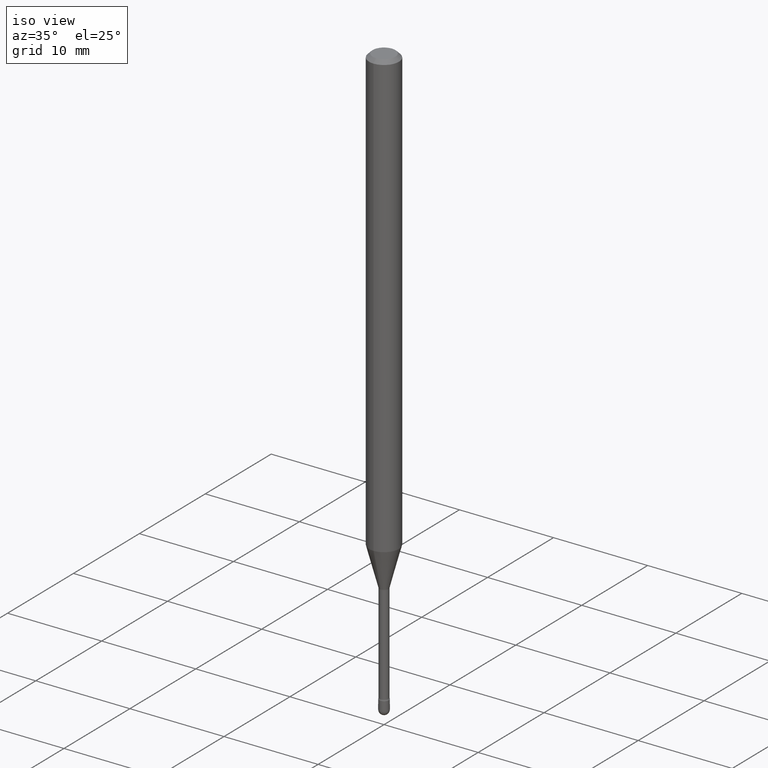
[diagram: clean part render]
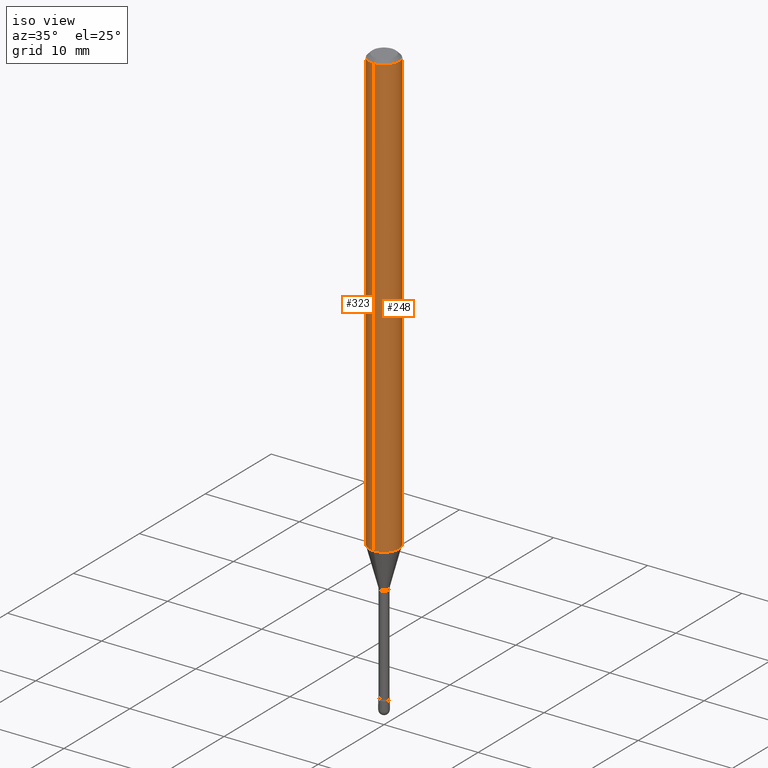
[diagram: same view with one multi-face feature highlighted, each face labeled with its STEP entity id]
A machine part, iso view. The highlighted faces form ONE feature: a constant-radius fillet chain: 2 tangent blend faces with common blend radius 1.5875 mm. The faces share edges in the B-rep.
Their STEP definitions:
[1] entity #323 (Cylinder):
#7 = DIRECTION ( 'NONE',  ( -2.445419758855719458E-29, 3.491551577410471603E-15, 1.000000000000000000 ) ) ;
#8 = EDGE_CURVE ( 'NONE', #239, #116, #395, .T. ) ;
#17 = VECTOR ( 'NONE', #173, 39.37007874015748143 ) ;
#36 = VERTEX_POINT ( 'NONE', #347 ) ;
#43 = FACE_OUTER_BOUND ( 'NONE', #287, .T. ) ;
#85 = CYLINDRICAL_SURFACE ( 'NONE', #253, 0.06250000000000000000 ) ;
#91 = ORIENTED_EDGE ( 'NONE', *, *, #8, .F. ) ;
#101 = CARTESIAN_POINT ( 'NONE',  ( 4.440892098501077785E-16, 0.06249999999999350520, -1.856909379709240637 ) ) ;
#116 = VERTEX_POINT ( 'NONE', #120 ) ;
#119 = DIRECTION ( 'NONE',  ( -6.982962677686265922E-15, -1.000000000000000000, 3.491551577410471208E-15 ) ) ;
#120 = CARTESIAN_POINT ( 'NONE',  ( 4.440892098501082715E-16, 0.06249999999999995143, -0.01500000000000030129 ) ) ;
#149 = DIRECTION ( 'NONE',  ( -2.445419758855719458E-29, 3.491551577410471603E-15, 1.000000000000000000 ) ) ;
#166 = EDGE_CURVE ( 'NONE', #116, #36, #374, .T. ) ;
#173 = DIRECTION ( 'NONE',  ( -2.445419758855719458E-29, 3.491551577410471603E-15, 1.000000000000000000 ) ) ;
#180 = EDGE_CURVE ( 'NONE', #239, #212, #185, .T. ) ;
#185 = CIRCLE ( 'NONE', #447, 0.06250000000000000000 ) ;
#212 = VERTEX_POINT ( 'NONE', #380 ) ;
#230 = AXIS2_PLACEMENT_3D ( 'NONE', #370, #149, #324 ) ;
#239 = VERTEX_POINT ( 'NONE', #101 ) ;
#246 = CARTESIAN_POINT ( 'NONE',  ( 4.540922887545493413E-29, -6.483494873832099196E-15, -1.856909379709240415 ) ) ;
#253 = AXIS2_PLACEMENT_3D ( 'NONE', #299, #7, #119 ) ;
#287 = EDGE_LOOP ( 'NONE', ( #91, #339, #489, #529 ) ) ;
#294 = EDGE_CURVE ( 'NONE', #212, #36, #343, .T. ) ;
#299 = CARTESIAN_POINT ( 'NONE',  ( -1.169113584055446105E-44, 1.669184350826100908E-30, 4.780733988912460139E-16 ) ) ;
#323 = ADVANCED_FACE ( 'NONE', ( #43 ), #85, .T. ) ;
#324 = DIRECTION ( 'NONE',  ( -6.982962677686265922E-15, -1.000000000000000000, 3.483106191921935554E-15 ) ) ;
#339 = ORIENTED_EDGE ( 'NONE', *, *, #180, .T. ) ;
#343 = LINE ( 'NONE', #402, #17 ) ;
#347 = CARTESIAN_POINT ( 'NONE',  ( -4.364351673553912750E-16, -0.06250000000000005551, -0.01499999999999986587 ) ) ;
#362 = VECTOR ( 'NONE', #499, 39.37007874015748143 ) ;
#370 = CARTESIAN_POINT ( 'NONE',  ( 3.668129638283599349E-31, -5.237327366115736641E-17, -0.01500000000000008271 ) ) ;
#374 = CIRCLE ( 'NONE', #230, 0.06250000000000000000 ) ;
#377 = CARTESIAN_POINT ( 'NONE',  ( 4.440892098500625669E-16, 0.06250000000000000000, 2.598514253030916127E-16 ) ) ;
#380 = CARTESIAN_POINT ( 'NONE',  ( -4.364351673553463099E-16, -0.06250000000000649480, -1.856909379709239971 ) ) ;
#395 = LINE ( 'NONE', #377, #362 ) ;
#402 = CARTESIAN_POINT ( 'NONE',  ( -4.364351673553916201E-16, -0.06250000000000000000, 6.962953724794005137E-16 ) ) ;
#447 = AXIS2_PLACEMENT_3D ( 'NONE', #246, #470, #513 ) ;
#470 = DIRECTION ( 'NONE',  ( -2.445419758855719458E-29, 3.491551577410471603E-15, 1.000000000000000000 ) ) ;
#489 = ORIENTED_EDGE ( 'NONE', *, *, #294, .T. ) ;
#499 = DIRECTION ( 'NONE',  ( -2.445419758855719458E-29, 3.491551577410471603E-15, 1.000000000000000000 ) ) ;
#513 = DIRECTION ( 'NONE',  ( -6.982962677686265922E-15, -1.000000000000000000, 4.370956789862821150E-15 ) ) ;
#529 = ORIENTED_EDGE ( 'NONE', *, *, #166, .F. ) ;
[2] entity #248 (Cylinder):
#8 = EDGE_CURVE ( 'NONE', #239, #116, #395, .T. ) ;
#17 = VECTOR ( 'NONE', #173, 39.37007874015748143 ) ;
#27 = DIRECTION ( 'NONE',  ( -6.982962677686265922E-15, -1.000000000000000000, 3.483106191921935554E-15 ) ) ;
#36 = VERTEX_POINT ( 'NONE', #347 ) ;
#60 = DIRECTION ( 'NONE',  ( -2.445419758855719458E-29, 3.491551577410471603E-15, 1.000000000000000000 ) ) ;
#67 = CARTESIAN_POINT ( 'NONE',  ( -1.169113584055446105E-44, 1.669184350826100908E-30, 4.780733988912460139E-16 ) ) ;
#101 = CARTESIAN_POINT ( 'NONE',  ( 4.440892098501077785E-16, 0.06249999999999350520, -1.856909379709240637 ) ) ;
#110 = CIRCLE ( 'NONE', #558, 0.06250000000000000000 ) ;
#116 = VERTEX_POINT ( 'NONE', #120 ) ;
#120 = CARTESIAN_POINT ( 'NONE',  ( 4.440892098501082715E-16, 0.06249999999999995143, -0.01500000000000030129 ) ) ;
#133 = DIRECTION ( 'NONE',  ( -6.982962677686265922E-15, -1.000000000000000000, 4.370956789862821150E-15 ) ) ;
#173 = DIRECTION ( 'NONE',  ( -2.445419758855719458E-29, 3.491551577410471603E-15, 1.000000000000000000 ) ) ;
#209 = EDGE_LOOP ( 'NONE', ( #283, #240, #476, #211 ) ) ;
#211 = ORIENTED_EDGE ( 'NONE', *, *, #294, .F. ) ;
#212 = VERTEX_POINT ( 'NONE', #380 ) ;
#226 = EDGE_CURVE ( 'NONE', #36, #116, #110, .T. ) ;
#237 = DIRECTION ( 'NONE',  ( -6.982962677686265922E-15, -1.000000000000000000, 3.491551577410471208E-15 ) ) ;
#239 = VERTEX_POINT ( 'NONE', #101 ) ;
#240 = ORIENTED_EDGE ( 'NONE', *, *, #8, .T. ) ;
#242 = AXIS2_PLACEMENT_3D ( 'NONE', #67, #60, #237 ) ;
#248 = ADVANCED_FACE ( 'NONE', ( #466 ), #544, .T. ) ;
#283 = ORIENTED_EDGE ( 'NONE', *, *, #422, .T. ) ;
#291 = CARTESIAN_POINT ( 'NONE',  ( 3.668129638283599349E-31, -5.237327366115736641E-17, -0.01500000000000008271 ) ) ;
#294 = EDGE_CURVE ( 'NONE', #212, #36, #343, .T. ) ;
#303 = CIRCLE ( 'NONE', #527, 0.06250000000000000000 ) ;
#343 = LINE ( 'NONE', #402, #17 ) ;
#347 = CARTESIAN_POINT ( 'NONE',  ( -4.364351673553912750E-16, -0.06250000000000005551, -0.01499999999999986587 ) ) ;
#362 = VECTOR ( 'NONE', #499, 39.37007874015748143 ) ;
#377 = CARTESIAN_POINT ( 'NONE',  ( 4.440892098500625669E-16, 0.06250000000000000000, 2.598514253030916127E-16 ) ) ;
#380 = CARTESIAN_POINT ( 'NONE',  ( -4.364351673553463099E-16, -0.06250000000000649480, -1.856909379709239971 ) ) ;
#394 = CARTESIAN_POINT ( 'NONE',  ( 4.540922887545493413E-29, -6.483494873832099196E-15, -1.856909379709240415 ) ) ;
#395 = LINE ( 'NONE', #377, #362 ) ;
#402 = CARTESIAN_POINT ( 'NONE',  ( -4.364351673553916201E-16, -0.06250000000000000000, 6.962953724794005137E-16 ) ) ;
#422 = EDGE_CURVE ( 'NONE', #212, #239, #303, .T. ) ;
#466 = FACE_OUTER_BOUND ( 'NONE', #209, .T. ) ;
#476 = ORIENTED_EDGE ( 'NONE', *, *, #226, .F. ) ;
#499 = DIRECTION ( 'NONE',  ( -2.445419758855719458E-29, 3.491551577410471603E-15, 1.000000000000000000 ) ) ;
#527 = AXIS2_PLACEMENT_3D ( 'NONE', #394, #532, #133 ) ;
#532 = DIRECTION ( 'NONE',  ( -2.445419758855719458E-29, 3.491551577410471603E-15, 1.000000000000000000 ) ) ;
#544 = CYLINDRICAL_SURFACE ( 'NONE', #242, 0.06250000000000000000 ) ;
#555 = DIRECTION ( 'NONE',  ( -2.445419758855719458E-29, 3.491551577410471603E-15, 1.000000000000000000 ) ) ;
#558 = AXIS2_PLACEMENT_3D ( 'NONE', #291, #555, #27 ) ;